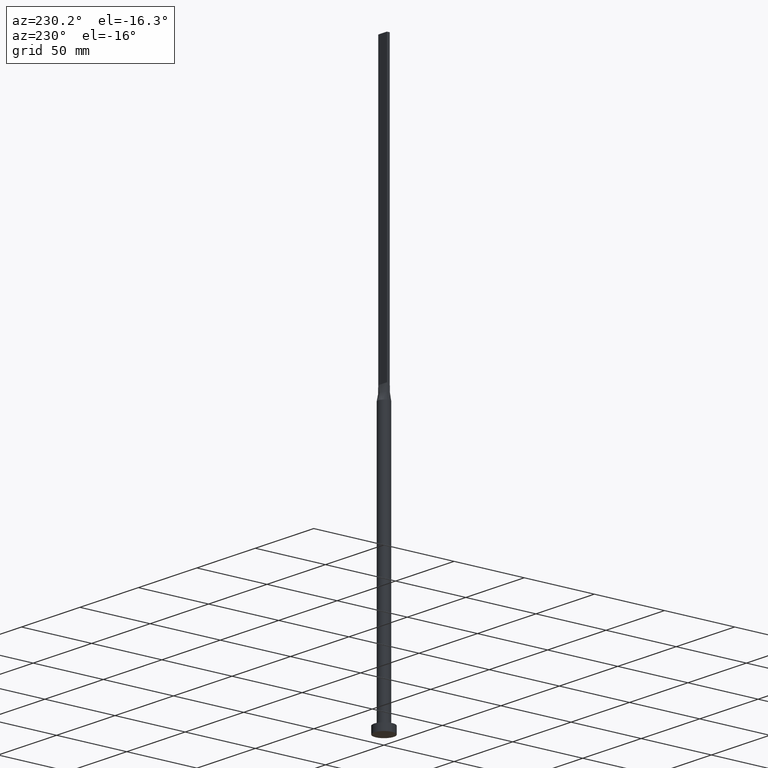
[diagram: clean part render]
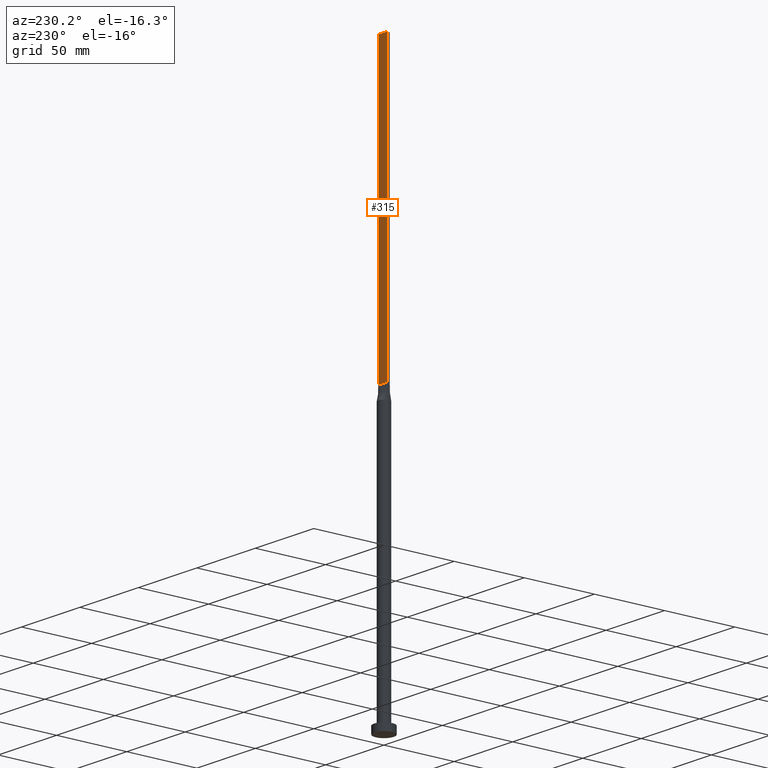
[diagram: same view with one face highlighted and labeled with its STEP entity id]
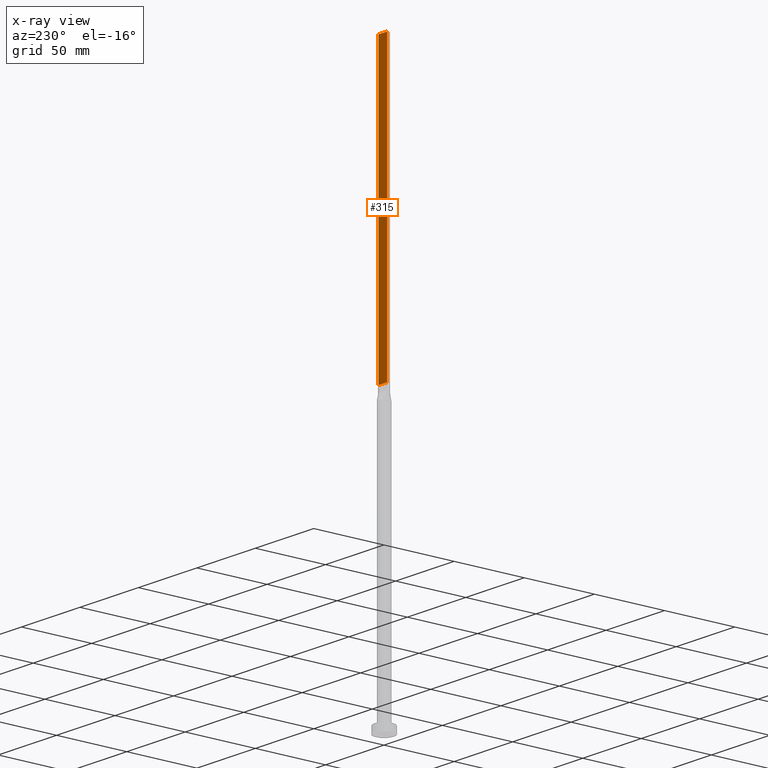
[diagram: x-ray of the same camera — body ghosted, the highlighted face saturated]
A machine part, auxiliary view. The second image highlights one B-rep face of the part: STEP entity #315.
The next image is the same camera in x-ray: the body ghosted, the highlighted face saturated — about 0% of this face is hidden behind the body in this view.
In plain terms, the highlighted planar face has unit normal (0, -1, 0).
Its self-contained STEP definition (entity closure, byte-faithful):
#6 = CARTESIAN_POINT ( 'NONE',  ( 3.750000000000000000, 1.000000000000000000, 400.0000000000000000 ) ) ;
#12 = DIRECTION ( 'NONE',  ( -0.000000000000000000, -0.000000000000000000, -1.000000000000000000 ) ) ;
#16 = LINE ( 'NONE', #434, #26 ) ;
#26 = VECTOR ( 'NONE', #436, 1000.000000000000000 ) ;
#54 = CARTESIAN_POINT ( 'NONE',  ( -3.750000000000000000, 1.000000000000000000, 200.0000000000000000 ) ) ;
#69 = VERTEX_POINT ( 'NONE', #54 ) ;
#76 = VECTOR ( 'NONE', #12, 1000.000000000000000 ) ;
#106 = VERTEX_POINT ( 'NONE', #523 ) ;
#124 = EDGE_CURVE ( 'NONE', #465, #579, #158, .T. ) ;
#131 = LINE ( 'NONE', #362, #76 ) ;
#148 = CARTESIAN_POINT ( 'NONE',  ( -3.750000000000000000, 1.000000000000000000, 400.0000000000000000 ) ) ;
#153 = ORIENTED_EDGE ( 'NONE', *, *, #124, .F. ) ;
#154 = PLANE ( 'NONE',  #246 ) ;
#158 = LINE ( 'NONE', #507, #175 ) ;
#164 = LINE ( 'NONE', #527, #475 ) ;
#175 = VECTOR ( 'NONE', #474, 1000.000000000000000 ) ;
#246 = AXIS2_PLACEMENT_3D ( 'NONE', #426, #332, #472 ) ;
#265 = EDGE_CURVE ( 'NONE', #579, #69, #131, .T. ) ;
#285 = ORIENTED_EDGE ( 'NONE', *, *, #382, .T. ) ;
#289 = ORIENTED_EDGE ( 'NONE', *, *, #265, .F. ) ;
#315 = ADVANCED_FACE ( 'NONE', ( #559 ), #154, .F. ) ;
#332 = DIRECTION ( 'NONE',  ( 0.000000000000000000, -1.000000000000000000, 0.000000000000000000 ) ) ;
#347 = DIRECTION ( 'NONE',  ( -1.000000000000000000, -0.000000000000000000, -0.000000000000000000 ) ) ;
#359 = EDGE_CURVE ( 'NONE', #465, #106, #16, .T. ) ;
#362 = CARTESIAN_POINT ( 'NONE',  ( -3.750000000000000000, 1.000000000000000000, 400.0000000000000000 ) ) ;
#382 = EDGE_CURVE ( 'NONE', #106, #69, #164, .T. ) ;
#426 = CARTESIAN_POINT ( 'NONE',  ( 3.750000000000000000, 1.000000000000000000, 400.0000000000000000 ) ) ;
#434 = CARTESIAN_POINT ( 'NONE',  ( 3.750000000000000000, 1.000000000000000000, 400.0000000000000000 ) ) ;
#436 = DIRECTION ( 'NONE',  ( -0.000000000000000000, -0.000000000000000000, -1.000000000000000000 ) ) ;
#465 = VERTEX_POINT ( 'NONE', #6 ) ;
#472 = DIRECTION ( 'NONE',  ( 0.000000000000000000, -0.000000000000000000, -1.000000000000000000 ) ) ;
#474 = DIRECTION ( 'NONE',  ( -1.000000000000000000, 0.000000000000000000, 0.000000000000000000 ) ) ;
#475 = VECTOR ( 'NONE', #347, 1000.000000000000000 ) ;
#504 = ORIENTED_EDGE ( 'NONE', *, *, #359, .T. ) ;
#507 = CARTESIAN_POINT ( 'NONE',  ( 3.750000000000000000, 1.000000000000000000, 400.0000000000000000 ) ) ;
#523 = CARTESIAN_POINT ( 'NONE',  ( 3.750000000000000000, 1.000000000000000000, 200.0000000000000000 ) ) ;
#527 = CARTESIAN_POINT ( 'NONE',  ( -3.750000000000000000, 1.000000000000000000, 200.0000000000000000 ) ) ;
#546 = EDGE_LOOP ( 'NONE', ( #285, #289, #153, #504 ) ) ;
#559 = FACE_OUTER_BOUND ( 'NONE', #546, .T. ) ;
#579 = VERTEX_POINT ( 'NONE', #148 ) ;